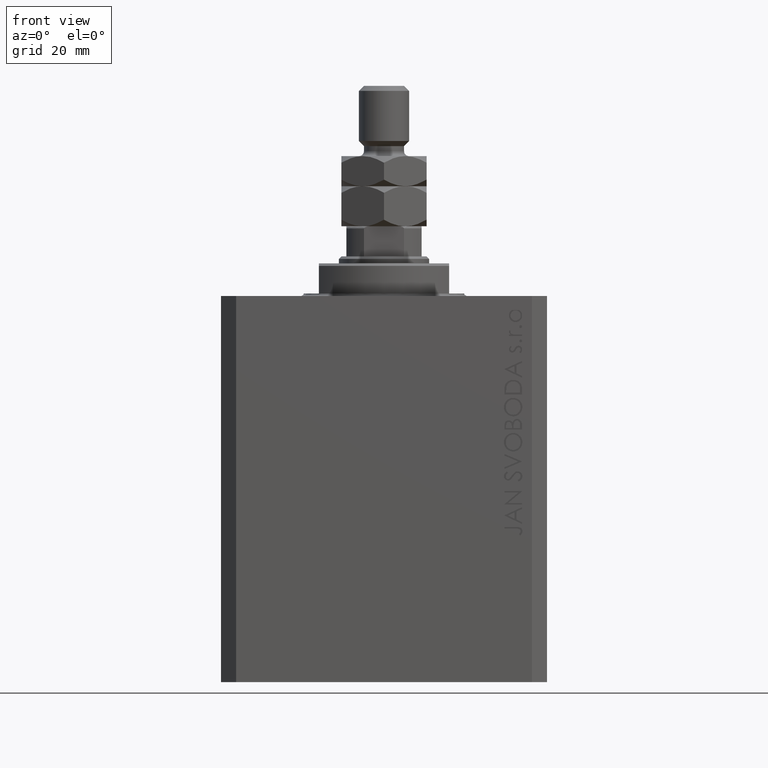
[diagram: clean part render]
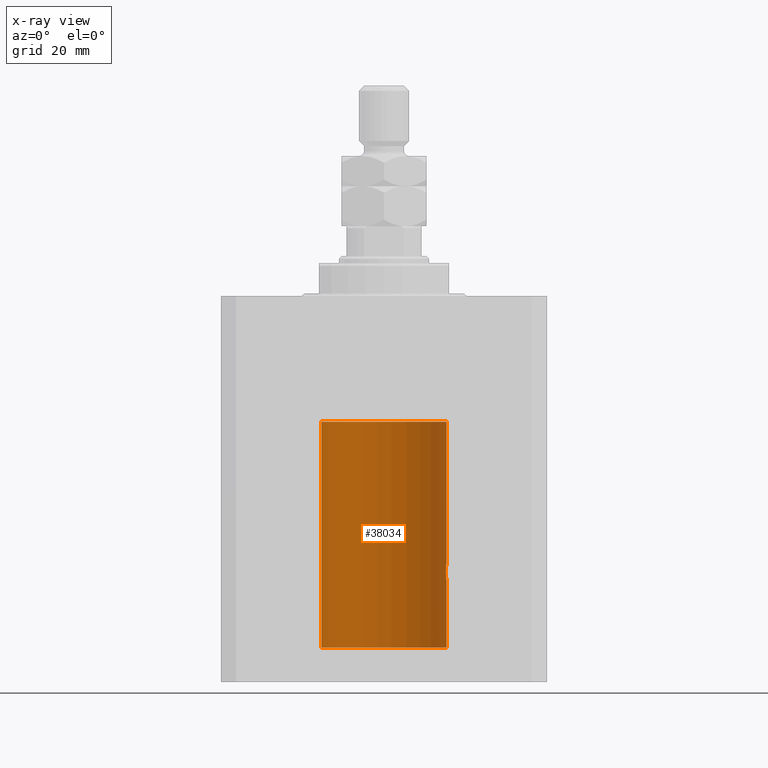
[diagram: x-ray — body ghosted, one internal face saturated and labeled with its STEP entity id]
A machine part, front view, then the same camera in x-ray: the body is ghosted and one INTERNAL B-rep face — a face not visible from any outside direction — is saturated and labeled: STEP entity #38034.
In plain terms, the highlighted cylindrical surface (partial cylindrical patch) has radius 12.5 mm, axis along (0, 0, 1).
Its self-contained STEP definition (entity closure, byte-faithful):
#952 = CARTESIAN_POINT ( 'NONE',  ( 0.000000000000000000, 0.000000000000000000, -25.10000000000000142 ) ) ;
#1075 = CARTESIAN_POINT ( 'NONE',  ( 12.37925647381943506, 1.734744884174225898, -53.99620732598648942 ) ) ;
#1318 = CARTESIAN_POINT ( 'NONE',  ( 12.50000000000000000, 0.1306079576516681051, -52.99999999999999289 ) ) ;
#1439 = AXIS2_PLACEMENT_3D ( 'NONE', #952, #43377, #42890 ) ;
#1922 = EDGE_CURVE ( 'NONE', #32227, #27537, #45049, .T. ) ;
#2496 = CARTESIAN_POINT ( 'NONE',  ( 12.39869754437269123, 1.598954131913734145, -56.22932152813013573 ) ) ;
#2999 = CARTESIAN_POINT ( 'NONE',  ( 12.50000000000000000, -2.972540724237087735E-15, -57.00000000000000000 ) ) ;
#3472 = CARTESIAN_POINT ( 'NONE',  ( 12.50000000000000000, 0.000000000000000000, -70.09999999999999432 ) ) ;
#3823 = CARTESIAN_POINT ( 'NONE',  ( 12.35520276972935250, 1.897773362058245761, -54.35528278634336630 ) ) ;
#4078 = CARTESIAN_POINT ( 'NONE',  ( 0.000000000000000000, 0.000000000000000000, -70.09999999999999432 ) ) ;
#4655 = VECTOR ( 'NONE', #33842, 1000.000000000000000 ) ;
#5014 = CARTESIAN_POINT ( 'NONE',  ( 12.46011632531799407, 1.003644408234889429, -53.26516799687669135 ) ) ;
#6875 = ORIENTED_EDGE ( 'NONE', *, *, #46484, .T. ) ;
#7052 = CARTESIAN_POINT ( 'NONE',  ( 12.37021546997940113, 1.797317011867410219, -54.11295119741077286 ) ) ;
#7369 = ORIENTED_EDGE ( 'NONE', *, *, #1922, .T. ) ;
#7449 = DIRECTION ( 'NONE',  ( 0.000000000000000000, 0.000000000000000000, 1.000000000000000000 ) ) ;
#8292 = DIRECTION ( 'NONE',  ( -0.000000000000000000, -0.000000000000000000, 1.000000000000000000 ) ) ;
#8966 = CARTESIAN_POINT ( 'NONE',  ( 12.46910683544638232, 0.8866026273585058126, -53.20247863689694157 ) ) ;
#8968 = VECTOR ( 'NONE', #8292, 1000.000000000000000 ) ;
#9089 = EDGE_CURVE ( 'NONE', #45077, #36930, #39693, .T. ) ;
#9807 = AXIS2_PLACEMENT_3D ( 'NONE', #41493, #7449, #22486 ) ;
#10406 = CARTESIAN_POINT ( 'NONE',  ( 12.34779119491631505, 1.947363444907015184, -55.52502775168252924 ) ) ;
#10490 = CARTESIAN_POINT ( 'NONE',  ( 12.33896267925302581, 2.000000000000254463, -55.00000000000000000 ) ) ;
#11127 = LINE ( 'NONE', #3472, #4655 ) ;
#11396 = CIRCLE ( 'NONE', #9807, 12.50000000000000000 ) ;
#11506 = ORIENTED_EDGE ( 'NONE', *, *, #41180, .T. ) ;
#11635 = VECTOR ( 'NONE', #22347, 1000.000000000000000 ) ;
#11750 = CARTESIAN_POINT ( 'NONE',  ( -12.50000000000000000, 1.530808498934191127E-15, -25.10000000000000142 ) ) ;
#12484 = CARTESIAN_POINT ( 'NONE',  ( 12.33896267925302581, 2.000000000000254463, -55.00000000000000000 ) ) ;
#17143 = AXIS2_PLACEMENT_3D ( 'NONE', #4078, #32980, #33471 ) ;
#17810 = CARTESIAN_POINT ( 'NONE',  ( 12.43016561391612207, 1.322713721413891319, -56.50578877836699121 ) ) ;
#18059 = CARTESIAN_POINT ( 'NONE',  ( 12.48989642018887736, 0.5185418732824300658, -56.93601292187608465 ) ) ;
#18382 = CARTESIAN_POINT ( 'NONE',  ( 12.50000000000000000, -2.972540724237087735E-15, -57.00000000000000000 ) ) ;
#18401 = FACE_OUTER_BOUND ( 'NONE', #46153, .T. ) ;
#19173 = CARTESIAN_POINT ( 'NONE',  ( -12.50000000000000000, 1.530808498934191127E-15, -70.09999999999999432 ) ) ;
#21944 = CIRCLE ( 'NONE', #1439, 12.50000000000000000 ) ;
#22235 = CARTESIAN_POINT ( 'NONE',  ( 12.46019522898365217, 1.002712894177341107, -56.73540896027601832 ) ) ;
#22347 = DIRECTION ( 'NONE',  ( -0.000000000000000000, -0.000000000000000000, 1.000000000000000000 ) ) ;
#22486 = DIRECTION ( 'NONE',  ( 1.000000000000000000, 0.000000000000000000, 0.000000000000000000 ) ) ;
#23756 = CARTESIAN_POINT ( 'NONE',  ( 12.43037348241797879, 1.320834183883846435, -53.49243837704294435 ) ) ;
#24006 = CARTESIAN_POINT ( 'NONE',  ( 12.48395395845270528, 0.6446573166014709644, -53.10222124213520090 ) ) ;
#24098 = CARTESIAN_POINT ( 'NONE',  ( 12.50000000000000000, -7.266276684081261841E-23, -53.00000000000000000 ) ) ;
#25534 = CARTESIAN_POINT ( 'NONE',  ( 12.33896267925302226, 2.000000000000254463, -54.86934705949917657 ) ) ;
#27232 = CARTESIAN_POINT ( 'NONE',  ( 12.50000000000000000, -7.266276684081261841E-23, -53.00000000000000000 ) ) ;
#27537 = VERTEX_POINT ( 'NONE', #34890 ) ;
#29385 = CARTESIAN_POINT ( 'NONE',  ( 12.50000000000000533, 0.1324055009716460785, -57.00000000000003553 ) ) ;
#29474 = CARTESIAN_POINT ( 'NONE',  ( 12.34924836377099844, 1.935649219704940194, -54.48002062127162759 ) ) ;
#29747 = CYLINDRICAL_SURFACE ( 'NONE', #17143, 12.50000000000000000 ) ;
#29992 = LINE ( 'NONE', #41113, #11635 ) ;
#30389 = EDGE_CURVE ( 'NONE', #32088, #47732, #11396, .T. ) ;
#31175 = CARTESIAN_POINT ( 'NONE',  ( 12.48983962833819028, 0.5199974825204921602, -53.06435160808016605 ) ) ;
#32088 = VERTEX_POINT ( 'NONE', #45814 ) ;
#32227 = VERTEX_POINT ( 'NONE', #24098 ) ;
#32961 = ORIENTED_EDGE ( 'NONE', *, *, #9089, .T. ) ;
#32980 = DIRECTION ( 'NONE',  ( -0.000000000000000000, -0.000000000000000000, 1.000000000000000000 ) ) ;
#33230 = VERTEX_POINT ( 'NONE', #11750 ) ;
#33356 = CARTESIAN_POINT ( 'NONE',  ( 12.33896267925302581, 2.000000000000254463, -55.00000000000000000 ) ) ;
#33471 = DIRECTION ( 'NONE',  ( 1.000000000000000000, 0.000000000000000000, 0.000000000000000000 ) ) ;
#33611 = CARTESIAN_POINT ( 'NONE',  ( 12.46901623405143766, 0.8878913781257957716, -56.79689651717549737 ) ) ;
#33842 = DIRECTION ( 'NONE',  ( -0.000000000000000000, -0.000000000000000000, 1.000000000000000000 ) ) ;
#33970 = CARTESIAN_POINT ( 'NONE',  ( 12.50000000000000000, 0.000000000000000000, -70.09999999999999432 ) ) ;
#34890 = CARTESIAN_POINT ( 'NONE',  ( 12.50000000000000000, 0.000000000000000000, -25.10000000000000142 ) ) ;
#36897 = CARTESIAN_POINT ( 'NONE',  ( 12.34110728646152211, 1.986893050944461780, -54.73661347764981144 ) ) ;
#36930 = VERTEX_POINT ( 'NONE', #12484 ) ;
#37292 = CARTESIAN_POINT ( 'NONE',  ( 12.33896267925302759, 2.000000000000254463, -55.26143174220786136 ) ) ;
#38034 = ADVANCED_FACE ( 'NONE', ( #18401 ), #29747, .F. ) ;
#38096 = EDGE_CURVE ( 'NONE', #47732, #33230, #29992, .T. ) ;
#38100 = CARTESIAN_POINT ( 'NONE',  ( 12.40916530024876963, 1.507117913375724649, -53.67865955049006033 ) ) ;
#39033 = ORIENTED_EDGE ( 'NONE', *, *, #38096, .F. ) ;
#39067 = CARTESIAN_POINT ( 'NONE',  ( 12.39867611624532806, 1.590019252152835794, -53.77984495929610631 ) ) ;
#39693 = B_SPLINE_CURVE_WITH_KNOTS ( 'NONE', 3,
 ( #2999, #29385, #47898, #18059, #41010, #33611, #22235, #47648, #17810, #2496, #43962, #10406, #37292, #33356 ),
 .UNSPECIFIED., .F., .F.,
 ( 4, 2, 2, 2, 2, 2, 4 ),
 ( 4.027442422438711134E-18, 0.0003915305205218086665, 0.0007830610410436133215, 0.001174591561565418085, 0.001566122082087222740, 0.002349183123130847445, 0.003132244164174471934 ),
 .UNSPECIFIED. ) ;
#40789 = EDGE_CURVE ( 'NONE', #36930, #32227, #42638, .T. ) ;
#41010 = CARTESIAN_POINT ( 'NONE',  ( 12.48390005916862755, 0.6457215011736598953, -56.89742771554266199 ) ) ;
#41113 = CARTESIAN_POINT ( 'NONE',  ( -12.50000000000000000, 1.530808498934191127E-15, -70.09999999999999432 ) ) ;
#41180 = EDGE_CURVE ( 'NONE', #27537, #33230, #21944, .T. ) ;
#41493 = CARTESIAN_POINT ( 'NONE',  ( 0.000000000000000000, 0.000000000000000000, -70.09999999999999432 ) ) ;
#42638 = B_SPLINE_CURVE_WITH_KNOTS ( 'NONE', 3,
 ( #10490, #25534, #36897, #29474, #3823, #7052, #1075, #39067, #38100, #23756, #45960, #5014, #8966, #24006, #31175, #45502, #1318, #27232 ),
 .UNSPECIFIED., .F., .F.,
 ( 4, 2, 2, 2, 2, 2, 2, 2, 4 ),
 ( 0.003132244164174471934, 0.003523586189974247697, 0.003914928215774023459, 0.004306270241573798355, 0.004697612267373574985, 0.005088954293173349880, 0.005480296318973125642, 0.005871638344772901405, 0.006262980370572677168 ),
 .UNSPECIFIED. ) ;
#42890 = DIRECTION ( 'NONE',  ( 1.000000000000000000, 0.000000000000000000, 0.000000000000000000 ) ) ;
#43377 = DIRECTION ( 'NONE',  ( 0.000000000000000000, 0.000000000000000000, 1.000000000000000000 ) ) ;
#43962 = CARTESIAN_POINT ( 'NONE',  ( 12.37760587642916477, 1.747868572747724114, -56.00639653169000098 ) ) ;
#45049 = LINE ( 'NONE', #33970, #8968 ) ;
#45077 = VERTEX_POINT ( 'NONE', #18382 ) ;
#45394 = ORIENTED_EDGE ( 'NONE', *, *, #30389, .F. ) ;
#45502 = CARTESIAN_POINT ( 'NONE',  ( 12.49788668346400122, 0.2632864803365722595, -53.01308975838332316 ) ) ;
#45814 = CARTESIAN_POINT ( 'NONE',  ( 12.50000000000000000, 0.000000000000000000, -70.09999999999999432 ) ) ;
#45960 = CARTESIAN_POINT ( 'NONE',  ( 12.44079117518645461, 1.220047488436375227, -53.40989676335082237 ) ) ;
#46039 = ORIENTED_EDGE ( 'NONE', *, *, #40789, .T. ) ;
#46153 = EDGE_LOOP ( 'NONE', ( #39033, #45394, #6875, #32961, #46039, #7369, #11506 ) ) ;
#46484 = EDGE_CURVE ( 'NONE', #32088, #45077, #11127, .T. ) ;
#47648 = CARTESIAN_POINT ( 'NONE',  ( 12.44079900692650753, 1.220007525301745277, -56.59017579083666760 ) ) ;
#47732 = VERTEX_POINT ( 'NONE', #19173 ) ;
#47898 = CARTESIAN_POINT ( 'NONE',  ( 12.49789833780794446, 0.2625555164371062844, -56.98698170822145670 ) ) ;